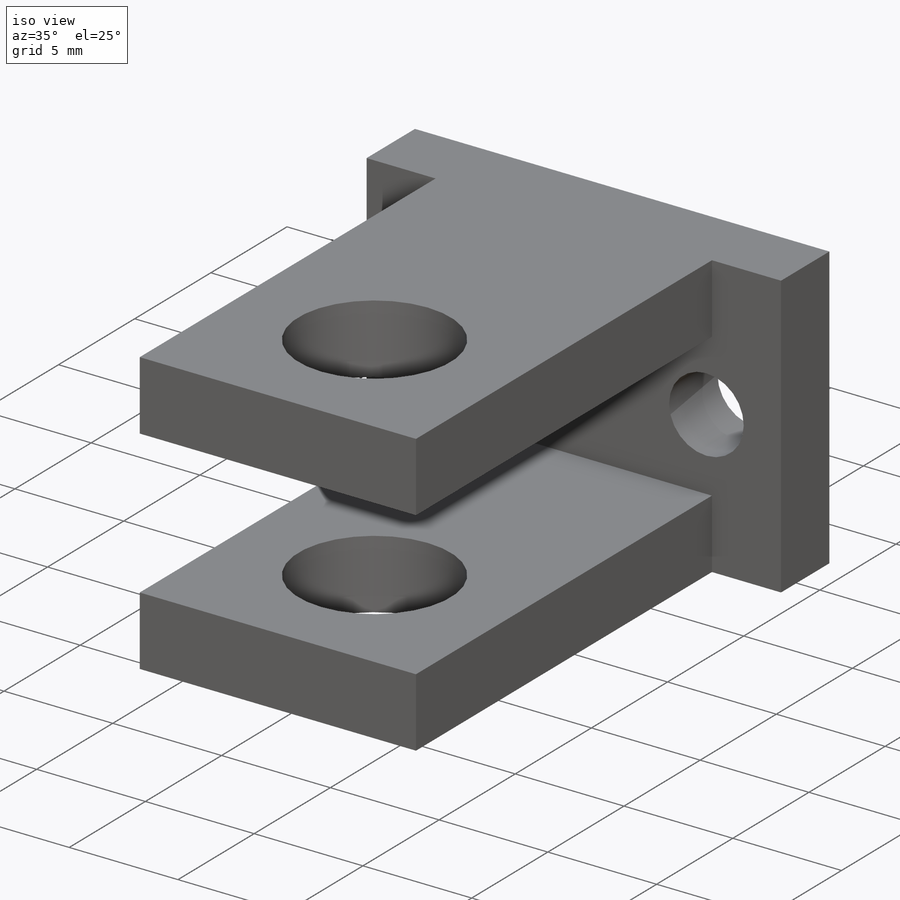
[diagram: iso view]
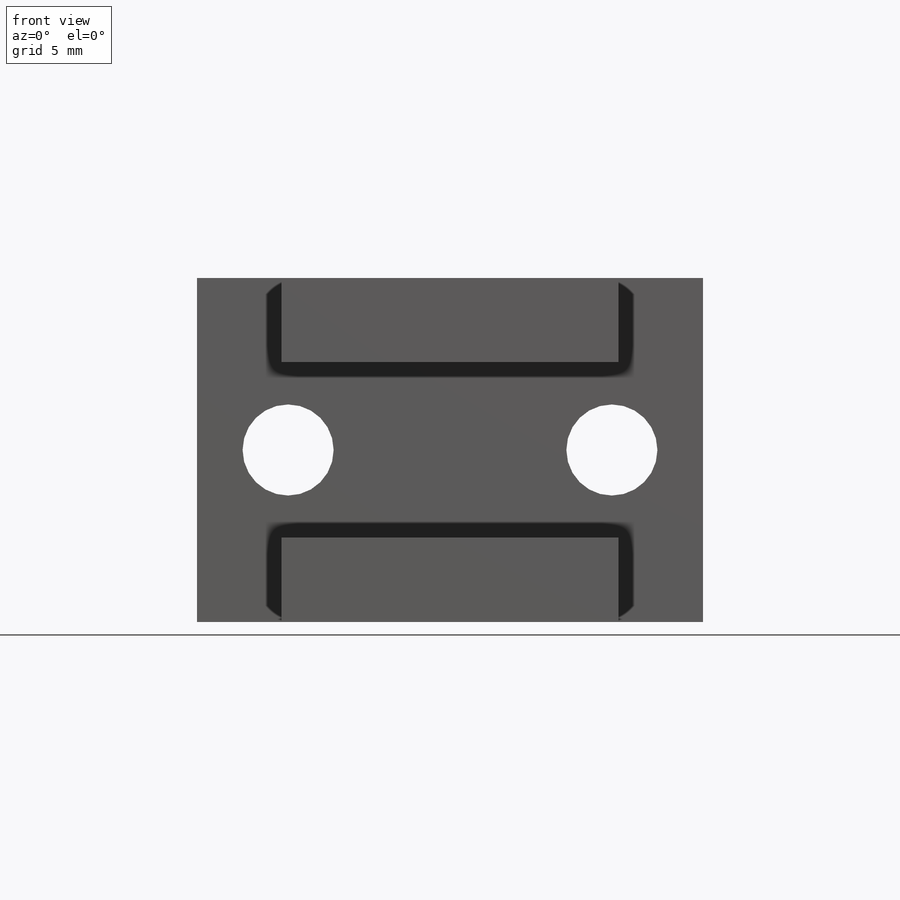
[diagram: front view]
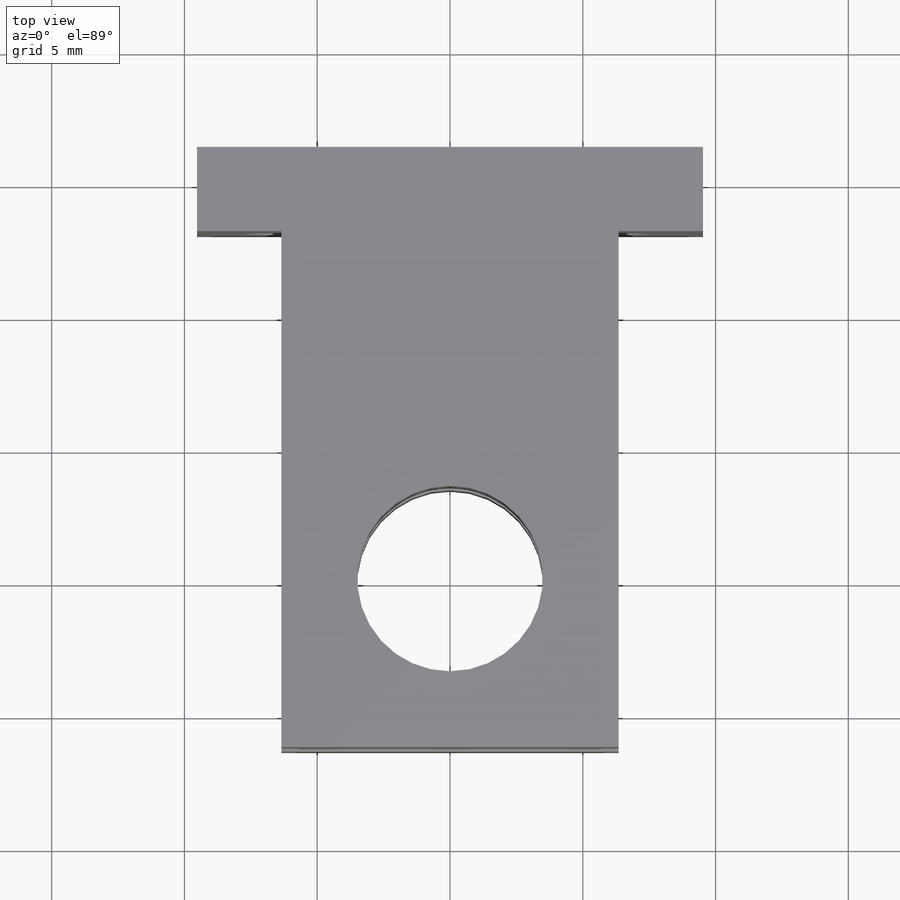
[diagram: top view]
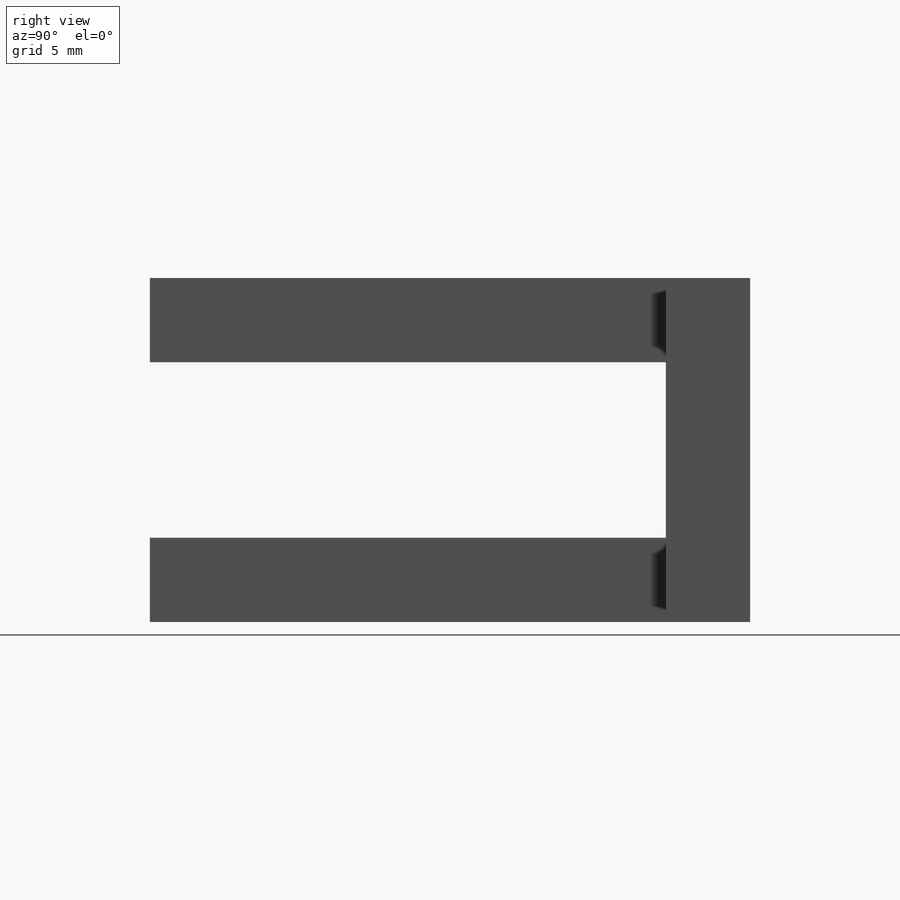
[diagram: right view]
SOLIDWORKS PART (.sldprt)
format: sldprt  version: not decoded by parser v0  size: 223,232 bytes
history: native  units: mm
features: sketch x6, extrude x4, cut_extrude x2, material x1 (+16 scaffold rows collapsed)
feature tree (29):
  scaffold x16  (default folders/planes/origin — collapsed)
  material  "Material <not specified>"
  sketch  "Sketch1"  dims[D1=22.606mm D2=12.7mm]
  extrude  "Boss-Extrude1"  Depth=3.175mm
  sketch  "Sketch2"  dims[D1=1.5875mm D2=3.175mm]
  extrude  "Boss-Extrude2"  Depth=6.604mm
  sketch  "Sketch3"
  extrude  "Boss-Extrude3"  Depth=3.175mm
  sketch  "Sketch4"  dims[D1=6.985mm D2=6.35mm]
  cut_extrude  "Cut-Extrude1"  [1 undecoded]
  sketch  "Sketch6"  dims[D1=3.175mm D2=3.175mm]
  extrude  "Boss-Extrude4"  Depth=3.175mm
  sketch  "Sketch5"  dims[c1.D1=3.429mm c1.D2=3.429mm c1.D5=2.794mm c1.D6=3.429mm c1.D3=2.794mm c1.D4=2.794mm c2.D5=12.192mm c2.D3=3.429mm c2.D4=3.429mm c2.D6=12.192mm]
  cut_extrude  "cut for mount screws"  [1 undecoded]
decode coverage: 9 of 12 modeling features carry decoded parameters
note: 2 parameter values undecoded
note: suppression state not decoded; provenance and decode notes live in map.json
